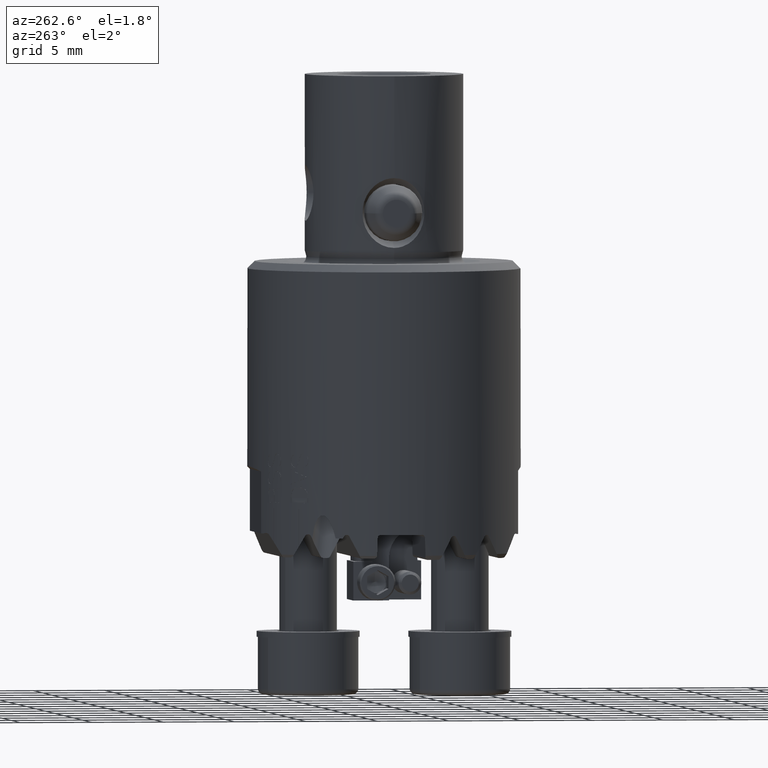
[diagram: clean part render]
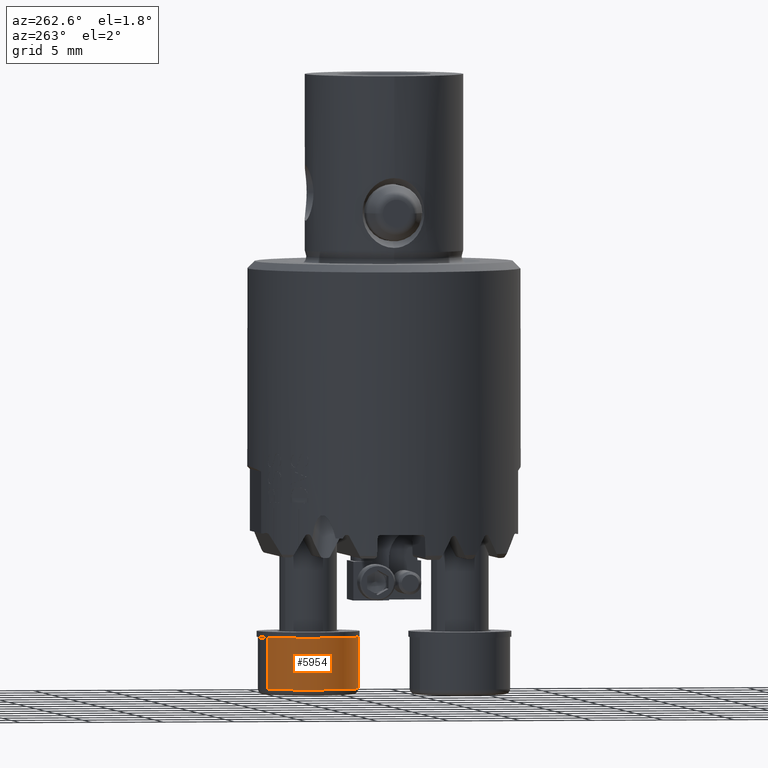
[diagram: same view with one face highlighted and labeled with its STEP entity id]
A machine part, auxiliary view. The second image highlights one B-rep face of the part: STEP entity #5954.
In plain terms, the highlighted cylindrical surface (partial cylindrical patch) has radius 3.5 mm, axis along (-0, 0, -1).
Its self-contained STEP definition (entity closure, byte-faithful):
#4296=VERTEX_POINT('NONE',#11030);
#5310=VERTEX_POINT('NONE',#12150);
#5954=ADVANCED_FACE('NONE',(#12875),#12876,.T.);
#6008=VERTEX_POINT('NONE',#12935);
#7364=EDGE_CURVE('NONE',#9568,#6008,#14434,.T.);
#7778=EDGE_CURVE('NONE',#9568,#4296,#14890,.T.);
#9074=EDGE_CURVE('NONE',#5310,#6008,#16327,.T.);
#9470=EDGE_CURVE('NONE',#4296,#5310,#16762,.T.);
#9568=VERTEX_POINT('NONE',#16869);
#11030=CARTESIAN_POINT('',(-1.25,8.28108891324553,-26.0911957356409));
#12150=CARTESIAN_POINT('',(-1.25,8.28108891324553,-29.6911957356409));
#12875=FACE_OUTER_BOUND('',#30552,.T.);
#12876=CYLINDRICAL_SURFACE('',#30553,3.5);
#12935=CARTESIAN_POINT('',(2.25,2.21891108675446,-29.6911957356409));
#14434=LINE('',#35561,#35562);
#14890=CIRCLE('',#37388,3.5);
#16327=CIRCLE('',#43447,3.5);
#16762=LINE('',#44616,#44617);
#16869=CARTESIAN_POINT('',(2.25,2.21891108675446,-26.0911957356409));
#30552=EDGE_LOOP('',(#48881,#48882,#48883,#48884));
#30553=AXIS2_PLACEMENT_3D('',#48885,#48886,#48887);
#35561=CARTESIAN_POINT('',(2.25,2.21891108675446,-30.0911957356409));
#35562=VECTOR('',#50582,1000.0);
#37388=AXIS2_PLACEMENT_3D('',#51050,#51051,#51052);
#43447=AXIS2_PLACEMENT_3D('',#52638,#52639,#52640);
#44616=CARTESIAN_POINT('',(-1.25,8.28108891324553,-30.0911957356409));
#44617=VECTOR('',#53077,1000.0);
#48881=ORIENTED_EDGE('',*,*,#7364,.F.);
#48882=ORIENTED_EDGE('',*,*,#7778,.T.);
#48883=ORIENTED_EDGE('',*,*,#9470,.T.);
#48884=ORIENTED_EDGE('',*,*,#9074,.T.);
#48885=CARTESIAN_POINT('',(0.499999999999999,5.25,-30.0911957356409));
#48886=DIRECTION('',(-4.40496996793381E-016,2.5754487813719E-017,-1.0));
#48887=DIRECTION('',(-0.5,0.866025403784438,2.42552539104828E-016));
#50582=DIRECTION('',(-4.40496996793382E-016,2.5754487813719E-017,-1.0));
#51050=CARTESIAN_POINT('',(0.500000000000001,5.25,-26.0911957356409));
#51051=DIRECTION('',(-4.46620230789118E-016,3.63602402009681E-017,-1.0));
#51052=DIRECTION('',(-0.5,0.866025403784438,2.54799007096302E-016));
#52638=CARTESIAN_POINT('',(0.499999999999999,5.25,-29.6911957356409));
#52639=DIRECTION('',(4.38875929557079E-016,-2.29467169979577E-017,1.0));
#52640=DIRECTION('',(0.5,-0.866025403784438,-2.39310404632223E-016));
#53077=DIRECTION('',(-4.40496996793382E-016,2.5754487813719E-017,-1.0));